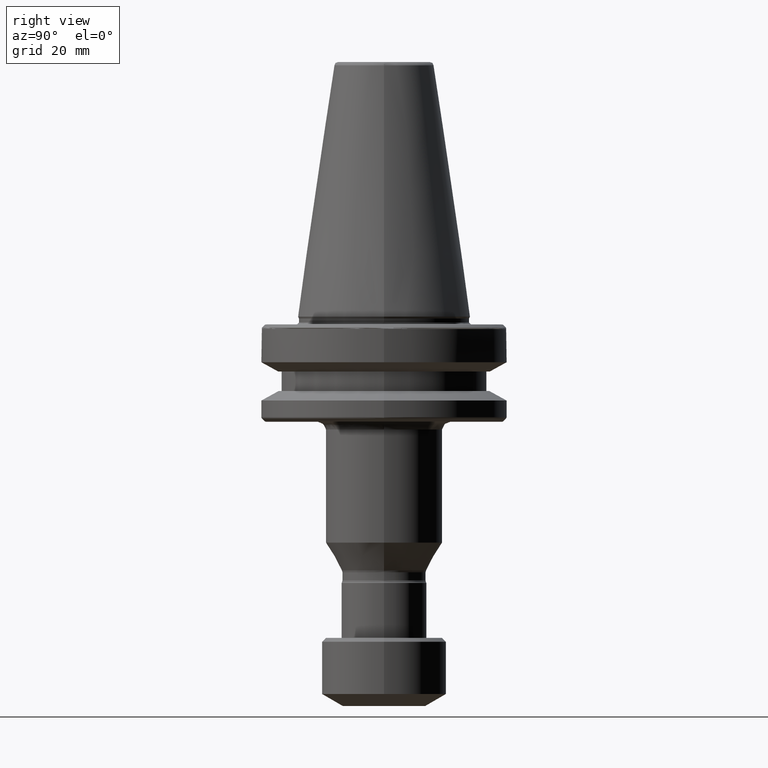
[diagram: clean part render]
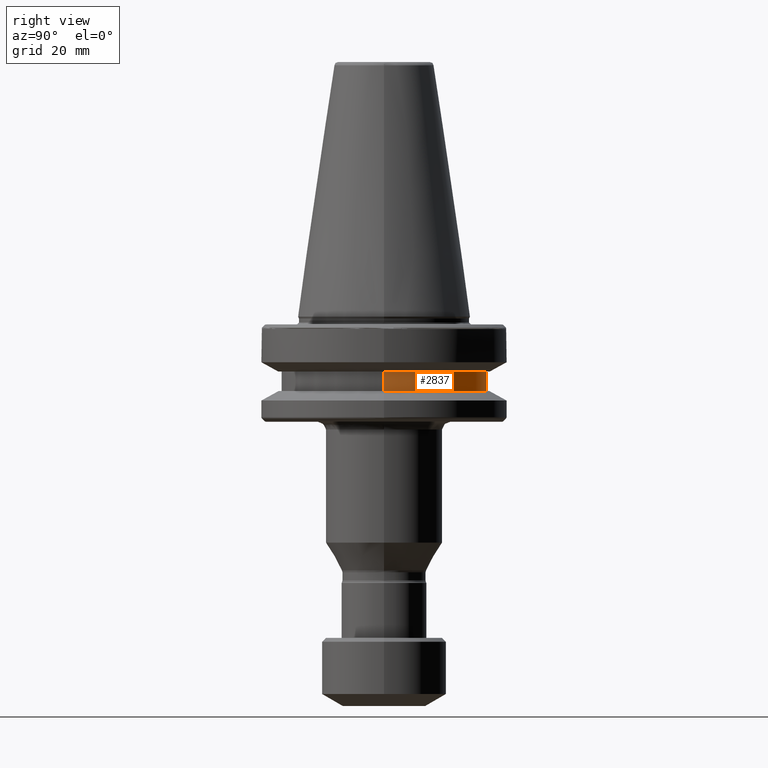
[diagram: same view with one face highlighted and labeled with its STEP entity id]
A machine part, right view. The second image highlights one B-rep face of the part: STEP entity #2837.
In plain terms, the highlighted cylindrical surface (partial cylindrical patch) has radius 26.5 mm, axis along (0, 0, 1).
Its self-contained STEP definition (entity closure, byte-faithful):
#182 = CYLINDRICAL_SURFACE ( 'NONE', #3682, 26.49999999999999600 ) ;
#197 = FACE_OUTER_BOUND ( 'NONE', #2385, .T. ) ;
#363 = CIRCLE ( 'NONE', #419, 26.49999999999999600 ) ;
#419 = AXIS2_PLACEMENT_3D ( 'NONE', #844, #1631, #3815 ) ;
#423 = VECTOR ( 'NONE', #3296, 1000.000000000000000 ) ;
#466 = LINE ( 'NONE', #1144, #423 ) ;
#474 = VECTOR ( 'NONE', #822, 1000.000000000000000 ) ;
#481 = LINE ( 'NONE', #530, #474 ) ;
#530 = CARTESIAN_POINT ( 'NONE',  ( 104.4815869565291700, 103.8751982920319800, 79.16703723820468500 ) ) ;
#597 = DIRECTION ( 'NONE',  ( -0.0000000000000000000, -0.0000000000000000000, -1.000000000000000000 ) ) ;
#822 = DIRECTION ( 'NONE',  ( 0.0000000000000000000, 0.0000000000000000000, 1.000000000000000000 ) ) ;
#844 = CARTESIAN_POINT ( 'NONE',  ( 77.98158695652918500, 103.8751982920319800, 84.16703723820469900 ) ) ;
#1144 = CARTESIAN_POINT ( 'NONE',  ( 51.48158695652918500, 103.8751982920319800, 79.16703723820468500 ) ) ;
#1309 = CARTESIAN_POINT ( 'NONE',  ( 104.4815869565291700, 103.8751982920319800, 84.16703723820469900 ) ) ;
#1425 = CARTESIAN_POINT ( 'NONE',  ( 77.98158695652918500, 103.8751982920319800, 79.16703723820468500 ) ) ;
#1578 = ORIENTED_EDGE ( 'NONE', *, *, #2130, .F. ) ;
#1631 = DIRECTION ( 'NONE',  ( 0.0000000000000000000, 0.0000000000000000000, 1.000000000000000000 ) ) ;
#1666 = CARTESIAN_POINT ( 'NONE',  ( 51.48158695652917800, 103.8751982920319800, 79.16703723820468500 ) ) ;
#1788 = DIRECTION ( 'NONE',  ( 0.0000000000000000000, 0.0000000000000000000, 1.000000000000000000 ) ) ;
#1862 = CIRCLE ( 'NONE', #3424, 26.49999999999999600 ) ;
#1966 = VERTEX_POINT ( 'NONE', #1666 ) ;
#2107 = VERTEX_POINT ( 'NONE', #2896 ) ;
#2130 = EDGE_CURVE ( 'NONE', #2527, #2724, #481, .T. ) ;
#2188 = EDGE_CURVE ( 'NONE', #1966, #2107, #466, .T. ) ;
#2385 = EDGE_LOOP ( 'NONE', ( #2568, #2559, #2874, #1578 ) ) ;
#2451 = CARTESIAN_POINT ( 'NONE',  ( 77.98158695652918500, 103.8751982920319800, 79.16703723820468500 ) ) ;
#2527 = VERTEX_POINT ( 'NONE', #2841 ) ;
#2559 = ORIENTED_EDGE ( 'NONE', *, *, #2188, .T. ) ;
#2568 = ORIENTED_EDGE ( 'NONE', *, *, #3840, .F. ) ;
#2724 = VERTEX_POINT ( 'NONE', #1309 ) ;
#2755 = DIRECTION ( 'NONE',  ( 1.000000000000000000, 0.0000000000000000000, 0.0000000000000000000 ) ) ;
#2837 = ADVANCED_FACE ( 'NONE', ( #197 ), #182, .T. ) ;
#2841 = CARTESIAN_POINT ( 'NONE',  ( 104.4815869565291700, 103.8751982920319800, 79.16703723820468500 ) ) ;
#2874 = ORIENTED_EDGE ( 'NONE', *, *, #3208, .F. ) ;
#2896 = CARTESIAN_POINT ( 'NONE',  ( 51.48158695652917800, 103.8751982920319800, 84.16703723820469900 ) ) ;
#3208 = EDGE_CURVE ( 'NONE', #2724, #2107, #363, .T. ) ;
#3296 = DIRECTION ( 'NONE',  ( 0.0000000000000000000, 0.0000000000000000000, 1.000000000000000000 ) ) ;
#3424 = AXIS2_PLACEMENT_3D ( 'NONE', #2451, #597, #2755 ) ;
#3560 = DIRECTION ( 'NONE',  ( 1.000000000000000000, 0.0000000000000000000, 0.0000000000000000000 ) ) ;
#3682 = AXIS2_PLACEMENT_3D ( 'NONE', #1425, #1788, #3560 ) ;
#3815 = DIRECTION ( 'NONE',  ( 1.000000000000000000, 0.0000000000000000000, 0.0000000000000000000 ) ) ;
#3840 = EDGE_CURVE ( 'NONE', #1966, #2527, #1862, .T. ) ;